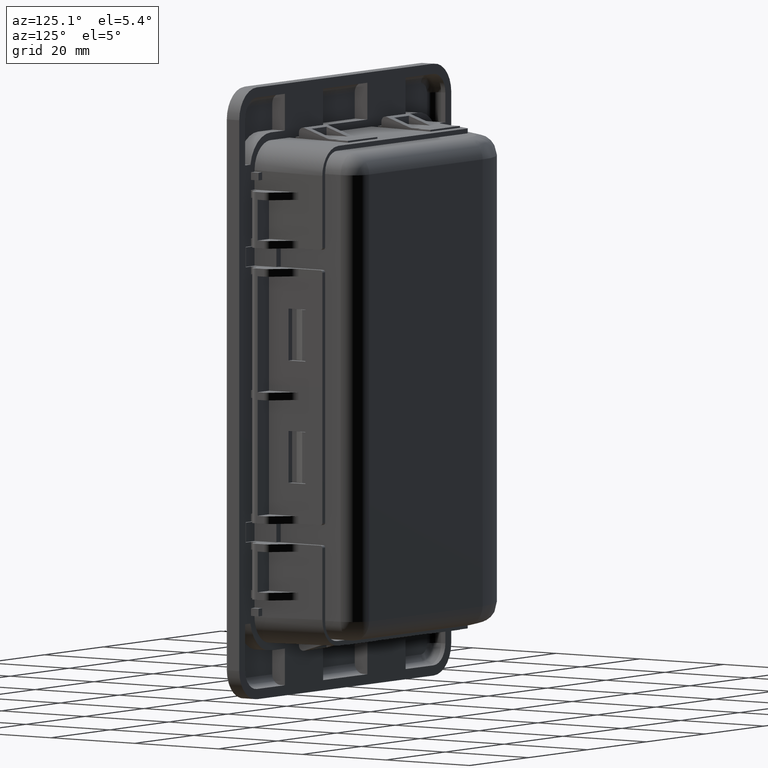
[diagram: clean part render]
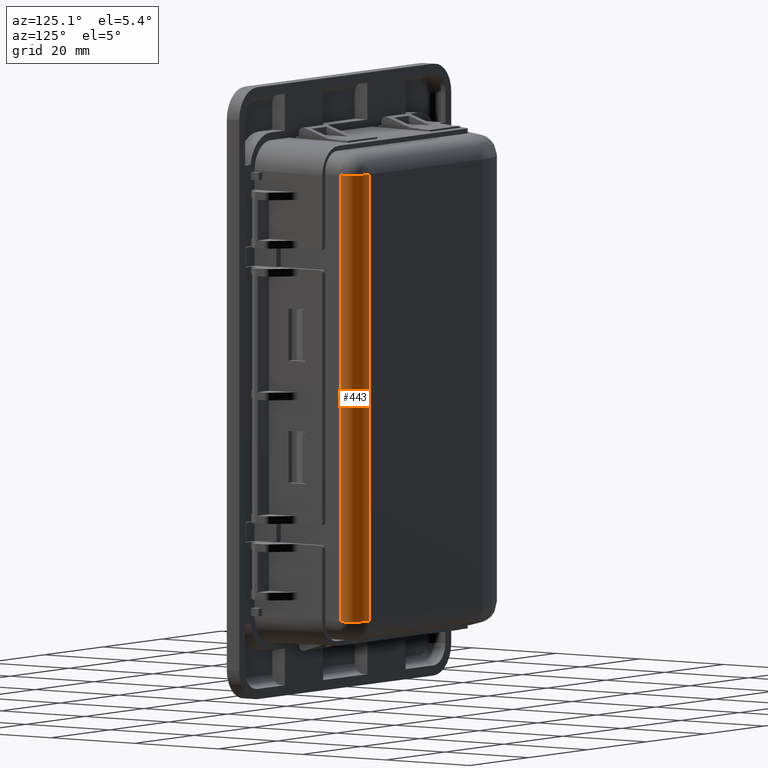
[diagram: same view with one face highlighted and labeled with its STEP entity id]
A machine part, auxiliary view. The second image highlights one B-rep face of the part: STEP entity #443.
In plain terms, the highlighted cylindrical surface (edge-blend (fillet) strip) has radius 4 mm, axis along (-0, -0, -1).
Its self-contained STEP definition (entity closure, byte-faithful):
#443=ADVANCED_FACE('',(#5076),#5075,.T.);
#5075=CYLINDRICAL_SURFACE('',#13012,4.00000000000E+000);
#5076=FACE_OUTER_BOUND('',#13013,.T.);
#13009=CARTESIAN_POINT('',(2.53000000003E+001,1.95000000000E+001,-9.52200000000E+002));
#13010=DIRECTION('',(-0.00000000000E+000,-0.00000000000E+000,-1.00000000000E+000));
#13011=DIRECTION('',(-1.00000000000E+000,-0.00000000000E+000,-0.00000000000E+000));
#13012=AXIS2_PLACEMENT_3D('',#13009,#13010,#13011);
#13013=EDGE_LOOP('',(#21039,#21040,#21041,#21042));
#21039=ORIENTED_EDGE('',*,*,#25318,.T.);
#21040=ORIENTED_EDGE('',*,*,#25259,.F.);
#21041=ORIENTED_EDGE('',*,*,#25181,.F.);
#21042=ORIENTED_EDGE('',*,*,#25267,.F.);
#25181=EDGE_CURVE('',#36368,#36349,#36375,.T.);
#25259=EDGE_CURVE('',#36349,#36893,#36894,.T.);
#25267=EDGE_CURVE('',#36940,#36368,#36947,.T.);
#25318=EDGE_CURVE('',#36940,#36893,#37291,.T.);
#36349=VERTEX_POINT('',#47987);
#36368=VERTEX_POINT('',#47998);
#36375=CIRCLE('',#48006,4.00000000000E+000);
#36893=VERTEX_POINT('',#48300);
#36894=LINE('',#48301,#48302);
#36940=VERTEX_POINT('',#48325);
#36947=LINE('',#48328,#48329);
#37291=CIRCLE('',#48520,4.00000000000E+000);
#47987=CARTESIAN_POINT('',(2.53000000003E+001,2.35000000000E+001,4.38000000001E+001));
#47998=CARTESIAN_POINT('',(2.93000000003E+001,1.95000000000E+001,4.38000000001E+001));
#48003=CARTESIAN_POINT('',(2.53000000003E+001,1.95000000000E+001,4.38000000001E+001));
#48004=DIRECTION('',(-0.00000000000E+000,0.00000000000E+000,1.00000000000E+000));
#48005=DIRECTION('',(-1.00000000000E+000,-0.00000000000E+000,-0.00000000000E+000));
#48006=AXIS2_PLACEMENT_3D('',#48003,#48004,#48005);
#48300=CARTESIAN_POINT('',(2.53000000003E+001,2.35000000000E+001,-4.37999999999E+001));
#48301=CARTESIAN_POINT('',(2.53000000003E+001,2.35000000000E+001,4.38000000001E+001));
#48302=VECTOR('',#48303,8.76000000000E+001);
#48303=DIRECTION('',(0.00000000000E+000,0.00000000000E+000,-1.00000000000E+000));
#48325=CARTESIAN_POINT('',(2.93000000003E+001,1.95000000000E+001,-4.37999999999E+001));
#48328=CARTESIAN_POINT('',(2.93000000003E+001,1.95000000000E+001,-4.37999999999E+001));
#48329=VECTOR('',#48330,8.76000000000E+001);
#48330=DIRECTION('',(0.00000000000E+000,0.00000000000E+000,1.00000000000E+000));
#48517=CARTESIAN_POINT('',(2.53000000003E+001,1.95000000000E+001,-4.37999999999E+001));
#48518=DIRECTION('',(0.00000000000E+000,-0.00000000000E+000,1.00000000000E+000));
#48519=DIRECTION('',(1.00000000000E+000,-0.00000000000E+000,-0.00000000000E+000));
#48520=AXIS2_PLACEMENT_3D('',#48517,#48518,#48519);